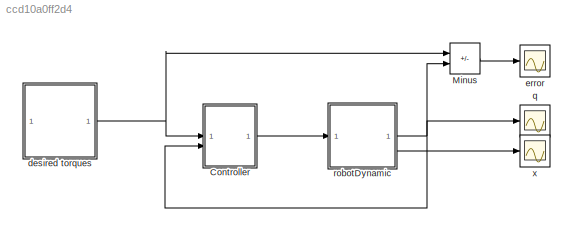
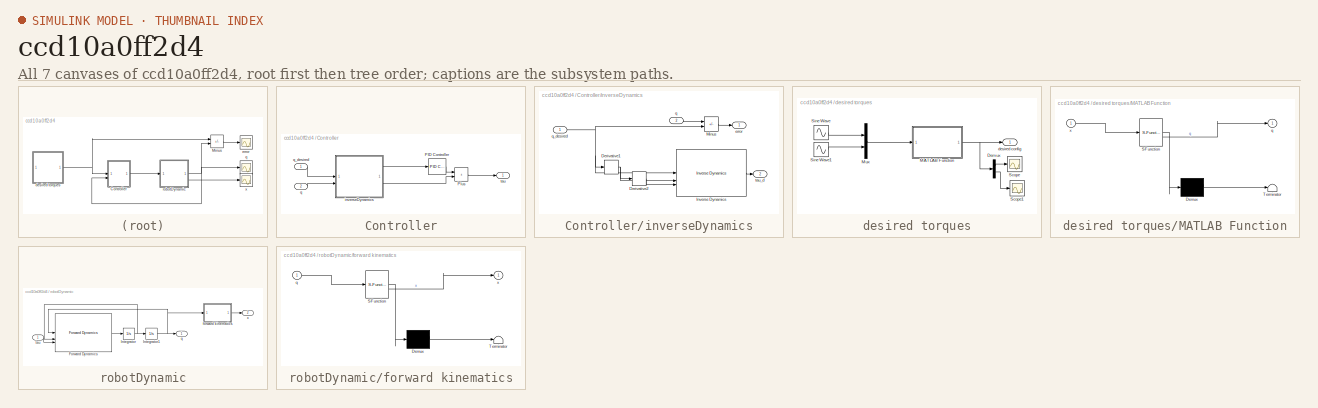
[diagram: thumbnail index - all 7 canvases of the model, root first then tree order]
MODEL slx_ccd10a0ff2d4
KIND model
CONFIG AbsTol = auto
CONFIG EnableMultiTasking = off
CONFIG FixedStep = 0.01
CONFIG MaxStep = auto
CONFIG MinStep = auto
CONFIG RelTol = 1e-3
CONFIG SampleTimeConstraint = Unconstrained
CONFIG SolverName = ode1
CONFIG StartTime = 0.0
CONFIG StopTime = 10
BLOCK [SubSystem] Controller
BLOCK [Reference] Controller/PID Controller  REF=slpidlib/PID Controller
  LibrarySourceBlock = simulink/Continuous/PID Controller
  SourceBlock = slpidlib/PID Controller
  SourceType = PID 1dof
BLOCK [Sum] Controller/Plus
  IconShape = rectangular
BLOCK [SubSystem] Controller/inverseDynamics
BLOCK [Derivative] Controller/inverseDynamics/Derivative1
BLOCK [Derivative] Controller/inverseDynamics/Derivative2
BLOCK [Reference] Controller/inverseDynamics/Inverse Dynamics  REF=robotmaniplib/Inverse Dynamics
  SourceBlock = robotmaniplib/Inverse Dynamics
  SourceType = Inverse Dynamics
BLOCK [Sum] Controller/inverseDynamics/Minus
  IconShape = rectangular
  Inputs = -+
BLOCK [Outport] Controller/inverseDynamics/error
BLOCK [Inport] Controller/inverseDynamics/q
  Port = 2
BLOCK [Inport] Controller/inverseDynamics/q_desired
BLOCK [Outport] Controller/inverseDynamics/tau_d
  Port = 2
BLOCK [Inport] Controller/q
  Port = 2
BLOCK [Inport] Controller/q_desired
BLOCK [Outport] Controller/tau
BLOCK [Sum] Minus
  IconShape = rectangular
  Inputs = +-
BLOCK [SubSystem] desired torques
BLOCK [Demux] desired torques/Demux
  Outputs = 2
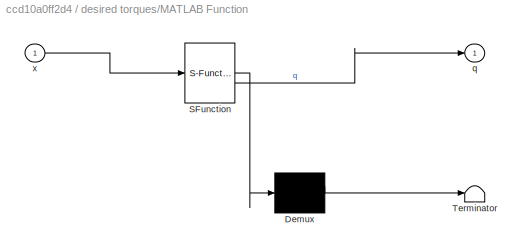
BLOCK [SubSystem] desired torques/MATLAB Function
  ErrorFcn = Stateflow.Translate.translate
  PermitHierarchicalResolution = ExplicitOnly
  SFBlockType = MATLAB Function
  TreatAsAtomicUnit = on
BLOCK [Demux] desired torques/MATLAB Function/ Demux 
  Outputs = 1
BLOCK [S-Function] desired torques/MATLAB Function/ SFunction 
  EnableBusSupport = on
  FunctionName = sf_sfun
  PortCounts = [1 2]
  SFcnIsStateOwnerBlock = off
  SFunctionDeploymentMode = off
  Tag = Stateflow S-Function 2
BLOCK [Terminator] desired torques/MATLAB Function/ Terminator 
BLOCK [Outport] desired torques/MATLAB Function/q
BLOCK [Inport] desired torques/MATLAB Function/x
BLOCK [Mux] desired torques/Mux
  DisplayOption = bar
  Inputs = 2
BLOCK [Scope] desired torques/Scope
  Floating = off
  NumInputPorts = 1
  ScopeSpecificationString = Simulink.scopes.TimeScopeBlockCfg('CurrentConfiguration', extmgr.ConfigurationSet(extmgr.Configuration('Core','General UI',true),extmgr.Configuration('Core','Source UI',true),extmgr.Configuration('Sources','WiredSimulink',true,'DataLoggingVariableName','ScopeData2'),extmgr.Configuration('Visuals','Time Domain',true,'SerializedDisplays',{struct('MinYLimReal','-4.97055','MaxYLimReal','2.87093','YLab...<+1455ch>
BLOCK [Scope] desired torques/Scope1
  Floating = off
  NumInputPorts = 1
  ScopeSpecificationString = Simulink.scopes.TimeScopeBlockCfg('CurrentConfiguration', extmgr.ConfigurationSet(extmgr.Configuration('Core','General UI',true),extmgr.Configuration('Core','Source UI',true),extmgr.Configuration('Sources','WiredSimulink',true,'DataLoggingVariableName','ScopeData3'),extmgr.Configuration('Visuals','Time Domain',true,'SerializedDisplays',{struct('MinYLimReal','1.0944','MaxYLimReal','3.0944','YLabelR...<+1445ch>
BLOCK [Sin] desired torques/Sine Wave
  Amplitude = 0.2
  SampleTime = 0
BLOCK [Sin] desired torques/Sine Wave1
  Amplitude = 0.2
  Phase = pi/2
  SampleTime = 0
BLOCK [Outport] desired torques/desired config
BLOCK [Scope] error
  Floating = off
  NumInputPorts = 1
  ScopeSpecificationString = Simulink.scopes.TimeScopeBlockCfg('CurrentConfiguration', extmgr.ConfigurationSet(extmgr.Configuration('Core','General UI',true),extmgr.Configuration('Core','Source UI',true),extmgr.Configuration('Sources','WiredSimulink',true,'DataLoggingVariableName','ScopeData1'),extmgr.Configuration('Visuals','Time Domain',true,'SerializedDisplays',{struct('MinYLimReal','-3.24036','MaxYLimReal','7.34142','YLab...<+1465ch>
BLOCK [Scope] q
  Floating = off
  NumInputPorts = 1
  ScopeSpecificationString = Simulink.scopes.TimeScopeBlockCfg('CurrentConfiguration', extmgr.ConfigurationSet(extmgr.Configuration('Core','General UI',true),extmgr.Configuration('Core','Source UI',true),extmgr.Configuration('Sources','WiredSimulink',true),extmgr.Configuration('Visuals','Time Domain',true,'SerializedDisplays',{struct('MinYLimReal','-5.26088','MaxYLimReal','5.28339','YLabelReal','','MinYLimMag','0.00000','MaxY...<+1473ch>
BLOCK [SubSystem] robotDynamic
BLOCK [Reference] robotDynamic/Forward Dynamics  REF=robotmaniplib/Forward Dynamics
  SourceBlock = robotmaniplib/Forward Dynamics
  SourceType = Forward Dynamics
BLOCK [Integrator] robotDynamic/Integrator
BLOCK [Integrator] robotDynamic/Integrator1
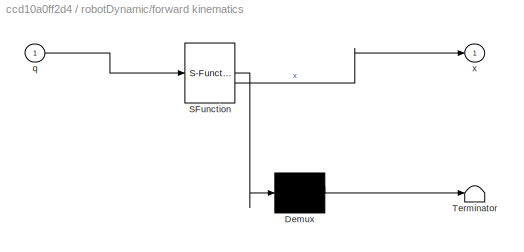
BLOCK [SubSystem] robotDynamic/forward kinematics
  ErrorFcn = Stateflow.Translate.translate
  PermitHierarchicalResolution = ExplicitOnly
  SFBlockType = MATLAB Function
  TreatAsAtomicUnit = on
BLOCK [Demux] robotDynamic/forward kinematics/ Demux 
  Outputs = 1
BLOCK [S-Function] robotDynamic/forward kinematics/ SFunction 
  EnableBusSupport = on
  FunctionName = sf_sfun
  PortCounts = [1 2]
  SFcnIsStateOwnerBlock = off
  SFunctionDeploymentMode = off
  Tag = Stateflow S-Function 4
BLOCK [Terminator] robotDynamic/forward kinematics/ Terminator 
BLOCK [Inport] robotDynamic/forward kinematics/q
BLOCK [Outport] robotDynamic/forward kinematics/x
BLOCK [Outport] robotDynamic/q
BLOCK [Inport] robotDynamic/tau
BLOCK [Outport] robotDynamic/x
  Port = 2
BLOCK [Scope] x
  Floating = off
  NumInputPorts = 1
  ScopeSpecificationString = Simulink.scopes.TimeScopeBlockCfg('CurrentConfiguration', extmgr.ConfigurationSet(extmgr.Configuration('Core','General UI',true),extmgr.Configuration('Core','Source UI',true),extmgr.Configuration('Sources','WiredSimulink',true,'DataLoggingVariableName','ScopeData1'),extmgr.Configuration('Visuals','Time Domain',true,'SerializedDisplays',{struct('MinYLimReal','-0.47416','MaxYLimReal','0.49713','YLab...<+1483ch>
LINE Controller/PID Controller:1 -> Controller/Plus:1
LINE Controller/Plus:1 -> Controller/tau:1
NET Controller/inverseDynamics/Derivative1:1 -> Controller/inverseDynamics/Derivative2:1, Controller/inverseDynamics/Inverse Dynamics:2
LINE Controller/inverseDynamics/Derivative2:1 -> Controller/inverseDynamics/Inverse Dynamics:3
LINE Controller/inverseDynamics/Inverse Dynamics:1 -> Controller/inverseDynamics/tau_d:1
LINE Controller/inverseDynamics/Minus:1 -> Controller/inverseDynamics/error:1
LINE Controller/inverseDynamics/q:1 -> Controller/inverseDynamics/Minus:1
NET Controller/inverseDynamics/q_desired:1 -> Controller/inverseDynamics/Derivative1:1, Controller/inverseDynamics/Inverse Dynamics:1, Controller/inverseDynamics/Minus:2
LINE Controller/inverseDynamics:1 -> Controller/PID Controller:1
LINE Controller/inverseDynamics:2 -> Controller/Plus:2
LINE Controller/q:1 -> Controller/inverseDynamics:2
LINE Controller/q_desired:1 -> Controller/inverseDynamics:1
LINE Controller:1 -> robotDynamic:1
LINE Minus:1 -> error:1
LINE desired torques/Demux:1 -> desired torques/Scope:1
LINE desired torques/Demux:2 -> desired torques/Scope1:1
NET desired torques/MATLAB Function:1 -> desired torques/Demux:1, desired torques/desired config:1
LINE desired torques/Mux:1 -> desired torques/MATLAB Function:1
LINE desired torques/Sine Wave1:1 -> desired torques/Mux:2
LINE desired torques/Sine Wave:1 -> desired torques/Mux:1
NET desired torques:1 -> Controller:1, Minus:1
LINE robotDynamic/Forward Dynamics:1 -> robotDynamic/Integrator:1
NET robotDynamic/Integrator1:1 -> robotDynamic/Forward Dynamics:1, robotDynamic/forward kinematics:1, robotDynamic/q:1
NET robotDynamic/Integrator:1 -> robotDynamic/Forward Dynamics:2, robotDynamic/Integrator1:1
LINE robotDynamic/forward kinematics:1 -> robotDynamic/x:1
LINE robotDynamic/tau:1 -> robotDynamic/Forward Dynamics:3
NET robotDynamic:1 -> Controller:2, Minus:2, q:1
LINE robotDynamic:2 -> x:1
note: NET lines group one-source signal fan-out (src -> all destinations, sorted); 1:1 wires keep LINE
CHART robotDynamic/forward kinematics states=1 transitions=1
  STATE_LABEL 'eML_blk_kernel()'
  STATE_LABEL 'SCRIPT:\nfunction x = kinematics(q)\n\nlg1 = 0.2;\nlg2 = 0.2;\nx = [0;\n    0];\nx(1) = lg1 * cos(q(1)) + lg2 * cos(q(1) + q(2));\nx(2) = lg1 * sin(q(1)) + lg2 * sin(q(1) + q(2));\n\nend'
CHART desired torques/MATLAB Function states=1 transitions=1
  STATE_LABEL 'eML_blk_kernel()'
  STATE_LABEL "SCRIPT:\nfunction q = ik(x)\n    L1 = 0.2;\n    L2 = 0.2;\n\n\n    d = sqrt(x(1)^2 + x(2)^2);\n    \n    % Check if the point is reachable\n    if d > (L1 + L2) || d < abs(L1 - L2)\n        error('The point is not reachable.');\n    end\n    \n    % Compute theta2 using the cosine law\n    cosTheta2 = (x(1)^2 + x(2)^2 - L1^2 - L2^2) / (2 * L1 * L2);\n    theta2 = acos(cosTheta2);\n    \n    % Compute the alternati...<+531ch>"
CHART  states=0 transitions=0
CHART  states=0 transitions=0
